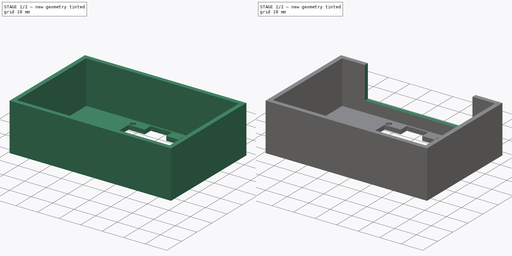
[diagram: build sequence overview — one tinted view per stage of 2, left to right]
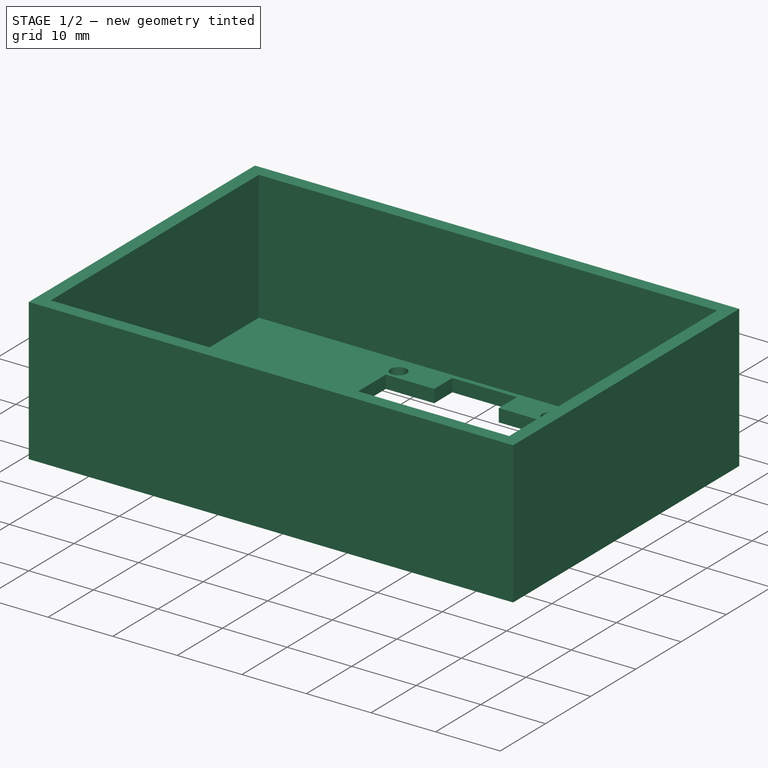
[diagram: stage 1 of 2 — iso view after this stage's code; geometry added in this stage tinted green]
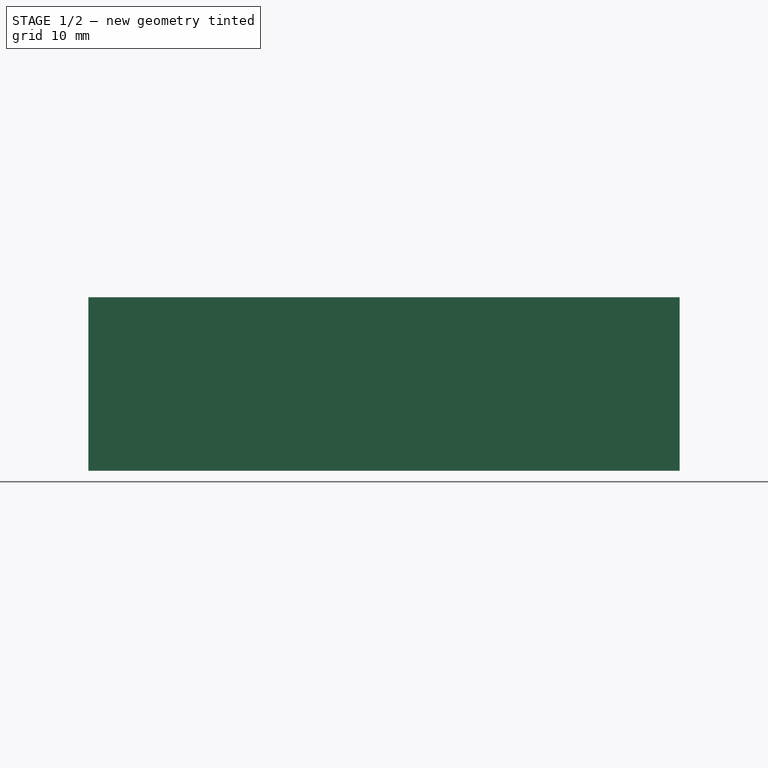
[diagram: stage 1 of 2 — front view after this stage's code; geometry added in this stage tinted green]
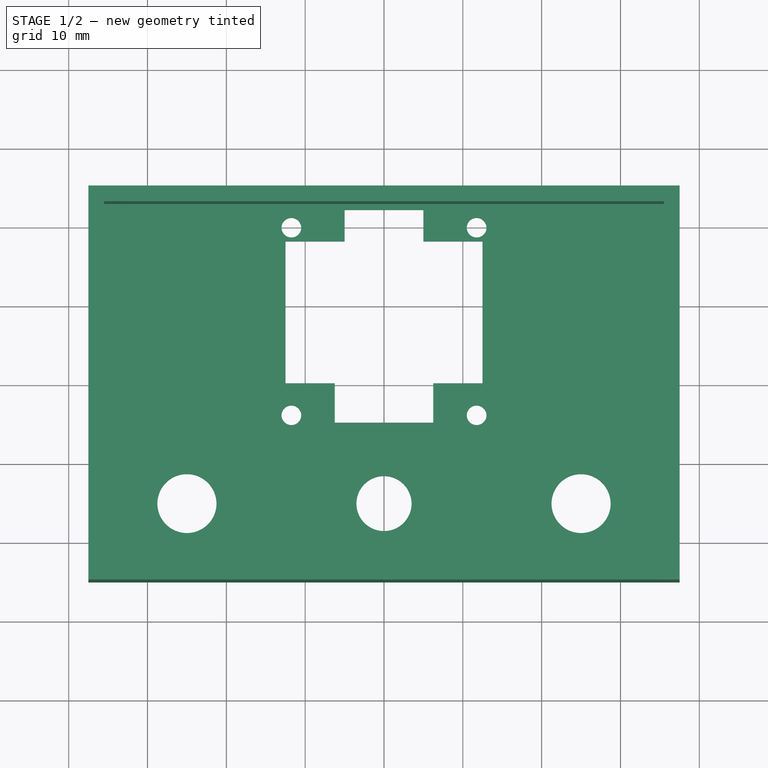
[diagram: stage 1 of 2 — top view after this stage's code; geometry added in this stage tinted green]
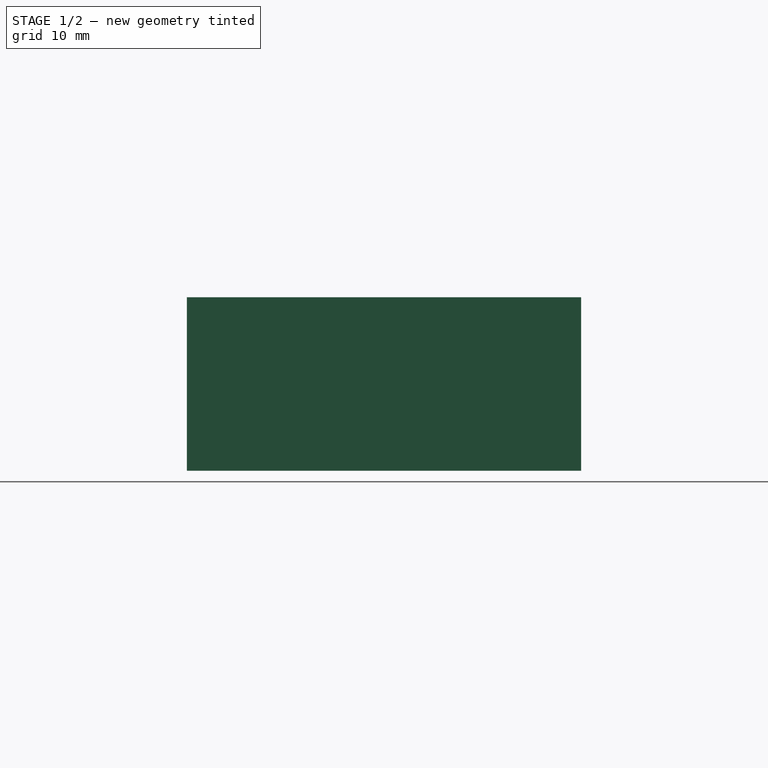
[diagram: stage 1 of 2 — right view after this stage's code; geometry added in this stage tinted green]
FCSTD DOCUMENT  (FreeCAD 1.0R)
Label: control-panel
License: All rights reserved
LicenseURL: https://en.wikipedia.org/wiki/All_rights_reserved
objects: Sketcher::SketchObject×3, PartDesign::Pad×2, PartDesign::Pocket×1, PartDesign::Body×1
note: 16 computed .brp shape members not serialized (recipe doc carries the construction recipe); baked Part::Feature solids carry a one-line shape summary decoded from their .brp

FEATURE [Sketcher::SketchObject] Sketch
  ArcFitTolerance = 1e-06
  AttachmentSupport = -> [XY_Plane]
  FullyConstrained = true
  MakeInternals = false
  MapMode = 5
  sketch-geometry (27):
    g0: LineSegment StartX=-37.5 StartY=-25 StartZ=0 EndX=37.5 EndY=-25 EndZ=0
    g1: LineSegment StartX=37.5 StartY=-25 StartZ=0 EndX=37.5 EndY=25 EndZ=0
    g2: LineSegment StartX=37.5 StartY=25 StartZ=0 EndX=-37.5 EndY=25 EndZ=0
    g3: LineSegment StartX=-37.5 StartY=25 StartZ=0 EndX=-37.5 EndY=-25 EndZ=0
    g4: LineSegment StartX=-12.5 StartY=18.25 StartZ=0 EndX=-12.5 EndY=0.25 EndZ=0
    g5: LineSegment StartX=12.5 StartY=0.25 StartZ=0 EndX=12.5 EndY=18.25 EndZ=0
    g6: LineSegment StartX=12.5 StartY=18.25 StartZ=0 EndX=5 EndY=18.25 EndZ=0
    g7: Circle CenterX=0 CenterY=-15 CenterZ=0 NormalX=0 NormalY=0 NormalZ=1 AngleXU=0 Radius=3.5
    g8: Circle CenterX=25 CenterY=-15 CenterZ=0 NormalX=0 NormalY=0 NormalZ=1 AngleXU=0 Radius=3.75
    g9: Circle CenterX=-25 CenterY=-15 CenterZ=0 NormalX=0 NormalY=0 NormalZ=1 AngleXU=0 Radius=3.75
    g10: Circle CenterX=-11.75 CenterY=20 CenterZ=0 NormalX=0 NormalY=0 NormalZ=1 AngleXU=0 Radius=1.25
    g11: Circle CenterX=-11.75 CenterY=-3.8 CenterZ=0 NormalX=0 NormalY=0 NormalZ=1 AngleXU=0 Radius=1.25
    g12: Circle CenterX=11.75 CenterY=-3.8 CenterZ=0 NormalX=0 NormalY=0 NormalZ=1 AngleXU=0 Radius=1.25
    g13: Circle CenterX=11.75 CenterY=20 CenterZ=0 NormalX=0 NormalY=0 NormalZ=1 AngleXU=0 Radius=1.25
    g14: LineSegment [constr] StartX=-11.75 StartY=20 StartZ=0 EndX=-11.75 EndY=-3.8 EndZ=0
    g15: LineSegment [constr] StartX=-11.75 StartY=-3.8 StartZ=0 EndX=11.75 EndY=-3.8 EndZ=0
    g16: LineSegment [constr] StartX=11.75 StartY=-3.8 StartZ=0 EndX=11.75 EndY=20 EndZ=0
    g17: LineSegment [constr] StartX=11.75 StartY=20 StartZ=0 EndX=-11.75 EndY=20 EndZ=0
    g18: LineSegment StartX=-12.5 StartY=0.25 StartZ=0 EndX=-6.25 EndY=0.25 EndZ=0
    g19: LineSegment StartX=-6.25 StartY=-4.75 StartZ=0 EndX=-6.25 EndY=0.25 EndZ=0
    g20: LineSegment StartX=6.25 StartY=-4.75 StartZ=0 EndX=6.25 EndY=0.25 EndZ=0
    g21: LineSegment StartX=6.25 StartY=0.25 StartZ=0 EndX=12.5 EndY=0.25 EndZ=0
    g22: LineSegment StartX=-6.25 StartY=-4.75 StartZ=0 EndX=6.25 EndY=-4.75 EndZ=0
    g23: LineSegment StartX=-5 StartY=18.25 StartZ=0 EndX=-5 EndY=22.25 EndZ=0
    g24: LineSegment StartX=-5 StartY=22.25 StartZ=0 EndX=5 EndY=22.25 EndZ=0
    g25: LineSegment StartX=5 StartY=22.25 StartZ=0 EndX=5 EndY=18.25 EndZ=0
    g26: LineSegment StartX=-5 StartY=18.25 StartZ=0 EndX=-12.5 EndY=18.25 EndZ=0
  constraints (74):
    c: Coincident(g0,g1)
    c: Coincident(g1,g2)
    c: Coincident(g2,g3)
    c: Coincident(g3,g0)
    c: Horizontal(g0)
    c: Horizontal(g2)
    c: Vertical(g1)
    c: Vertical(g3)
    c: Symmetric(g1,g0,g-1)
    c: DistanceX(g2,g2) = 75
    c: DistanceY(g3,g3) = 50
    c: Coincident(g5,g6)
    c: Coincident(g26,g4)
    c: Vertical(g4)
    c: Vertical(g5)
    c: PointOnObject(g7,g-2)
    c: Equal(g9,g8)
    c: Horizontal(g9,g7)
    c: Coincident(g14,g15)
    c: Coincident(g15,g16)
    c: Coincident(g16,g17)
    c: Coincident(g17,g14)
    c: Vertical(g14)
    c: Vertical(g16)
    c: Horizontal(g17)
    c: Coincident(g14,g10)
    c: Coincident(g15,g12)
    c: Coincident(g13,g16)
    c: Coincident(g11,g14)
    c: Equal(g11,g10)
    c: Equal(g10,g13)
    c: Equal(g13,g12)
    c: Diameter(g9) = 7.5
    c: Diameter(g11) = 2.5
    c: DistanceX(g26,g6) = 25
    c: DistanceY(g14,g14) = 23.8
    c: DistanceX(g17,g17) = 23.5
    c: Symmetric(g11,g12,g-2)
    c: Horizontal(g18)
    c: PointOnObject(g19,g22)
    c: Coincident(g19,g18)
    c: Coincident(g20,g21)
    c: Horizontal(g21)
    c: Vertical(g20)
    c: Vertical(g19)
    c: Equal(g19,g20)
    c: Equal(g21,g18)
    c: Coincident(g4,g18)
    c: PointOnObject(g22,g19)
    c: Coincident(g22,g20)
    c: Coincident(g5,g21)
    c: Horizontal(g22)
    c: Distance(g5,g17) = 1.75
    c: Symmetric(g4,g5,g-2)
    c: DistanceY(g4,g4) = 18
    c: Distance(g19,g6) = 23
    c: DistanceX(g22,g22) = 12.5
    c: Distance(g10,g2) = 5
    c: Distance(g7,g0) = 10
    c: Diameter(g7) = 7
    c: Distance(g9,g-2) = 25
    c: Symmetric(g8,g9,g-2)
    c: PointOnObject(g23,g26)
    c: Vertical(g23)
    c: Coincident(g23,g24)
    c: Coincident(g24,g25)
    c: Vertical(g25)
    c: DistanceX(g24,g24) = 10
    c: Symmetric(g23,g24,g-2)
    c: Coincident(g6,g25)
    c: PointOnObject(g26,g23)
    c: Distance(g23,g23) = 4
    c: Horizontal(g26)
    c: Horizontal(g6)
FEATURE [PartDesign::Pad] Pad  label="face plate"
  Direction = (0,0,1)
  Length = 2
  Length2 = 10
  Profile = -> Sketch
  ReferenceAxis = -> Sketch [N_Axis]
  Refine = true
  Reversed = true
  Suppressed = false
  Type = 0
FEATURE [Sketcher::SketchObject] Sketch001
  ArcFitTolerance = 1e-06
  AttachmentSupport = -> [XY_Plane]
  FullyConstrained = true
  MakeInternals = false
  MapMode = 5
  sketch-geometry (8):
    g0: LineSegment StartX=-37.5 StartY=25 StartZ=0 EndX=-37.5 EndY=-25 EndZ=0
    g1: LineSegment StartX=-37.5 StartY=-25 StartZ=0 EndX=37.5 EndY=-25 EndZ=0
    g2: LineSegment StartX=37.5 StartY=-25 StartZ=0 EndX=37.5 EndY=25 EndZ=0
    g3: LineSegment StartX=37.5 StartY=25 StartZ=0 EndX=-37.5 EndY=25 EndZ=0
    g4: LineSegment StartX=35.5 StartY=-23 StartZ=0 EndX=35.5 EndY=23 EndZ=0
    g5: LineSegment StartX=35.5 StartY=23 StartZ=0 EndX=-35.5 EndY=23 EndZ=0
    g6: LineSegment StartX=-35.5 StartY=23 StartZ=0 EndX=-35.5 EndY=-23 EndZ=0
    g7: LineSegment StartX=-35.5 StartY=-23 StartZ=0 EndX=35.5 EndY=-23 EndZ=0
  constraints (22):
    c: Coincident(g0,g1)
    c: Coincident(g1,g2)
    c: Coincident(g2,g3)
    c: Coincident(g3,g0)
    c: Vertical(g0)
    c: Vertical(g2)
    c: Horizontal(g1)
    c: Horizontal(g3)
    c: Coincident(g4,g5)
    c: Coincident(g5,g6)
    c: Coincident(g6,g7)
    c: Coincident(g7,g4)
    c: Vertical(g4)
    c: Vertical(g6)
    c: Horizontal(g5)
    c: Horizontal(g7)
    c: Symmetric(g5,g4,g-1)
    c: Symmetric(g0,g1,g-1)
    c: Distance(g5,g0) = 2
    c: Distance(g5,g3) = 2
    c: DistanceX(g3,g3) = 75
    c: DistanceY(g0,g0) = 50
FEATURE [PartDesign::Pad] Pad001  label="walls"
  BaseFeature = -> Pad
  Direction = (0,0,1)
  Length = 20
  Length2 = 10
  Profile = -> Sketch001
  ReferenceAxis = -> Sketch001 [N_Axis]
  Refine = true
  Suppressed = false
  Type = 0
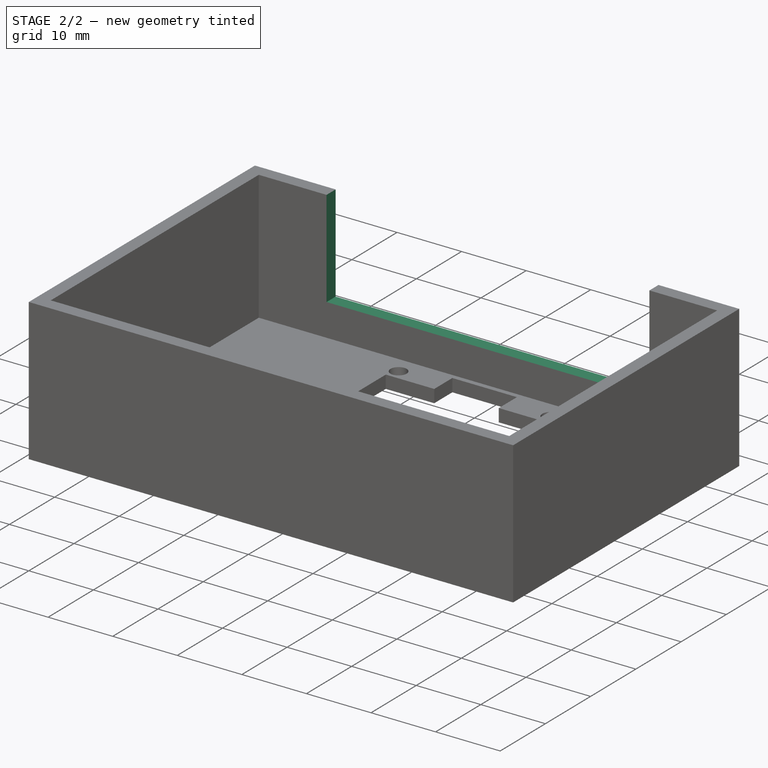
[diagram: stage 2 of 2 — iso view after this stage's code; geometry added in this stage tinted green]
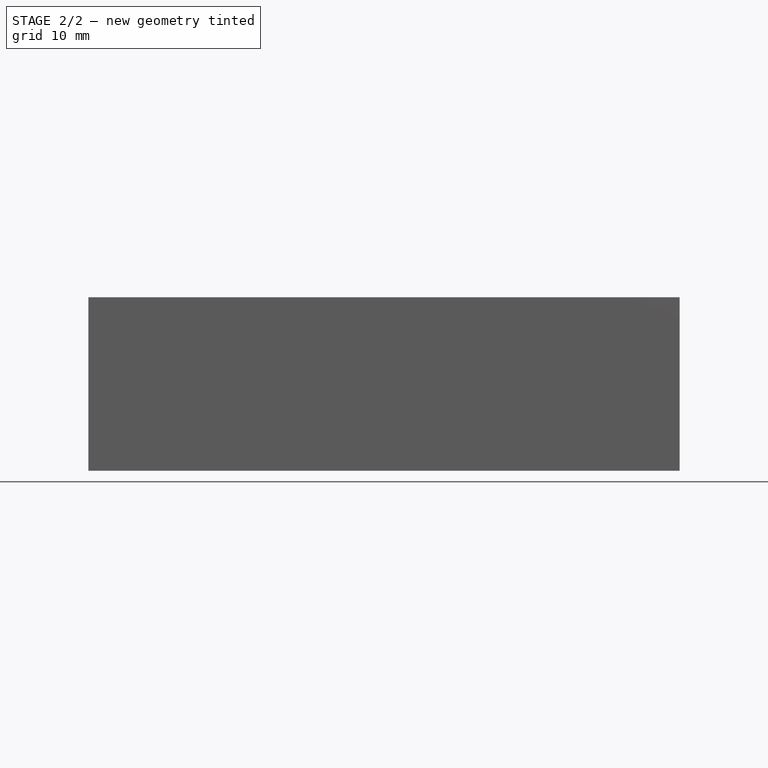
[diagram: stage 2 of 2 — front view after this stage's code; geometry added in this stage tinted green]
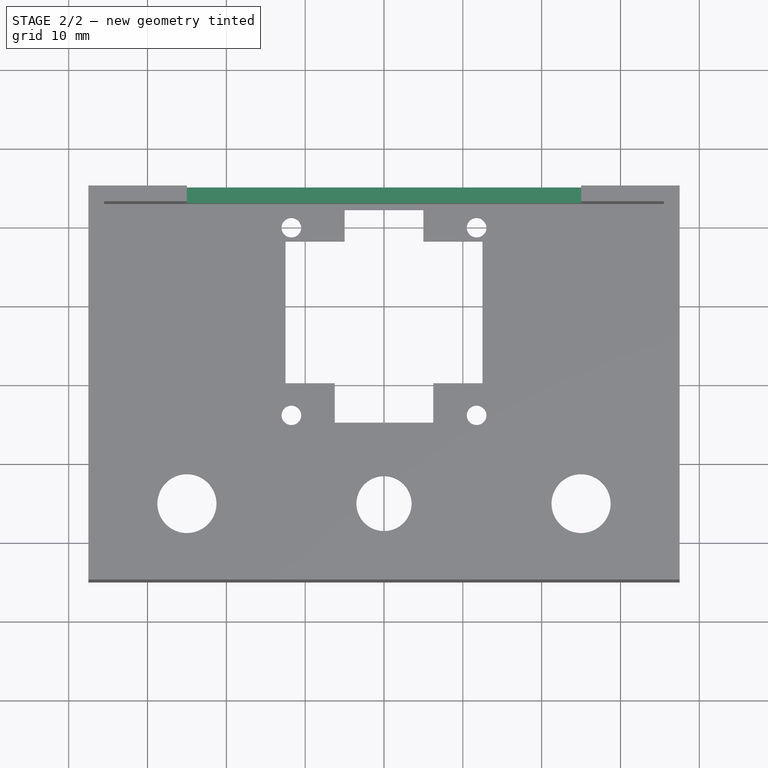
[diagram: stage 2 of 2 — top view after this stage's code; geometry added in this stage tinted green]
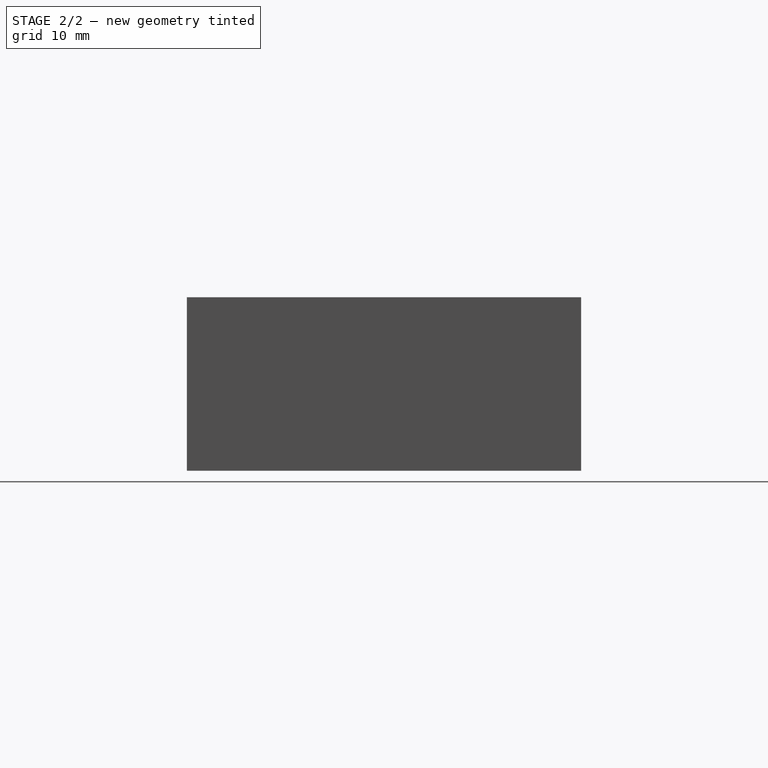
[diagram: stage 2 of 2 — right view after this stage's code; geometry added in this stage tinted green]
FEATURE [Sketcher::SketchObject] Sketch002
  ArcFitTolerance = 1e-06
  AttachmentSupport = -> [XZ_Plane]
  FullyConstrained = true
  MakeInternals = false
  MapMode = 5
  Placement = pos=(0,0,0) rot=(1,0,0;1.5708rad)
  sketch-geometry (4):
    g0: LineSegment StartX=-25 StartY=20 StartZ=0 EndX=-25 EndY=5 EndZ=0
    g1: LineSegment StartX=-25 StartY=5 StartZ=0 EndX=25 EndY=5 EndZ=0
    g2: LineSegment StartX=25 StartY=5 StartZ=0 EndX=25 EndY=20 EndZ=0
    g3: LineSegment StartX=25 StartY=20 StartZ=0 EndX=-25 EndY=20 EndZ=0
  constraints (11):
    c: Coincident(g0,g1)
    c: Coincident(g1,g2)
    c: Coincident(g2,g3)
    c: Coincident(g3,g0)
    c: Vertical(g0)
    c: Vertical(g2)
    c: Horizontal(g1)
    c: Symmetric(g0,g2,g-2)
    c: Distance(g0,g-1) = 20
    c: DistanceY(g0,g0) = 15
    c: DistanceX(g3,g3) = 50
FEATURE [PartDesign::Pocket] Pocket
  BaseFeature = -> Pad001
  Direction = (0,1,-2e-16)
  Length = 5
  Length2 = 5
  Profile = -> Sketch002
  ReferenceAxis = -> Sketch002 [N_Axis]
  Refine = true
  Suppressed = false
  Type = 1
FEATURE [PartDesign::Body] Body
  AllowCompound = false
  Group = -> [Sketch,Pad,Sketch001,Pad001,Sketch002,Pocket]
  Origin = -> Origin
  Tip = -> Pocket
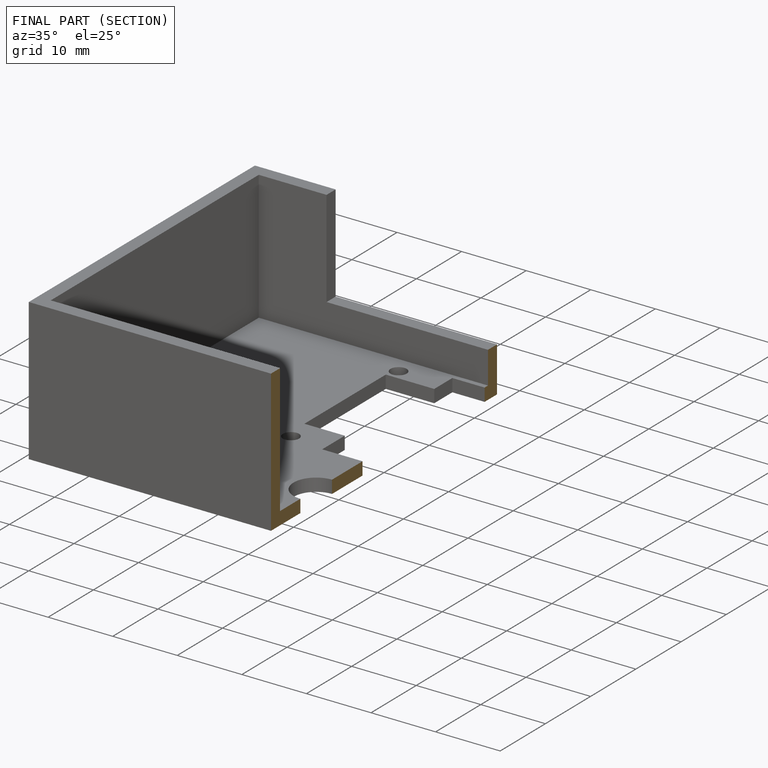
[diagram: finished part — half-section view (interior)]
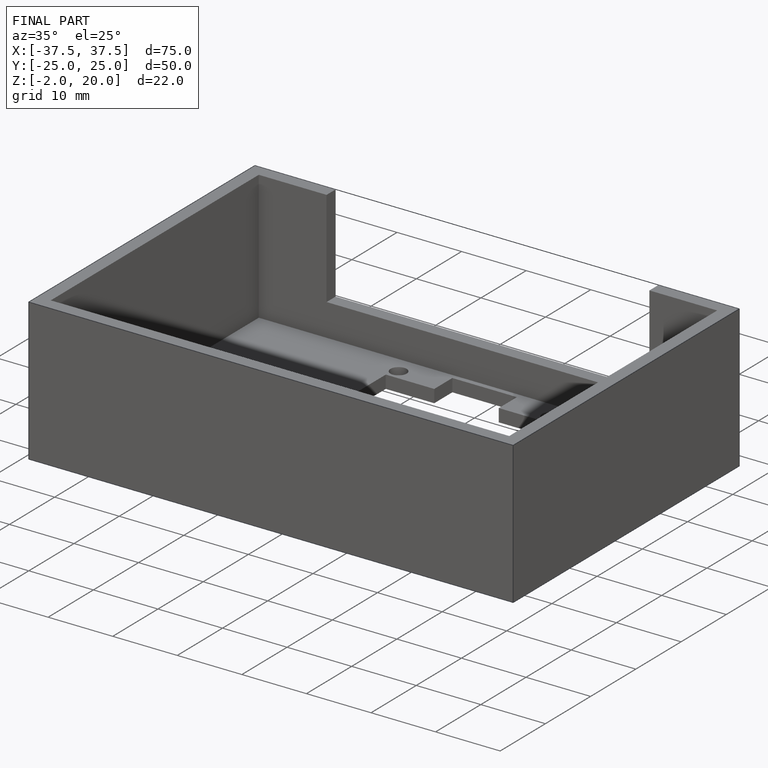
[diagram: finished part — iso view with bounding-box wireframe]
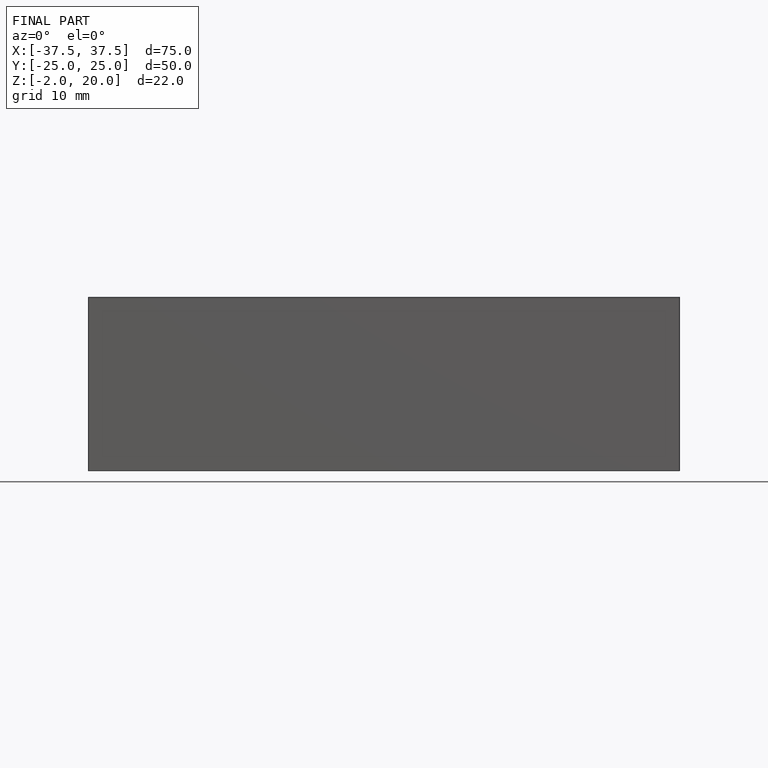
[diagram: finished part — front view with bounding-box wireframe]
